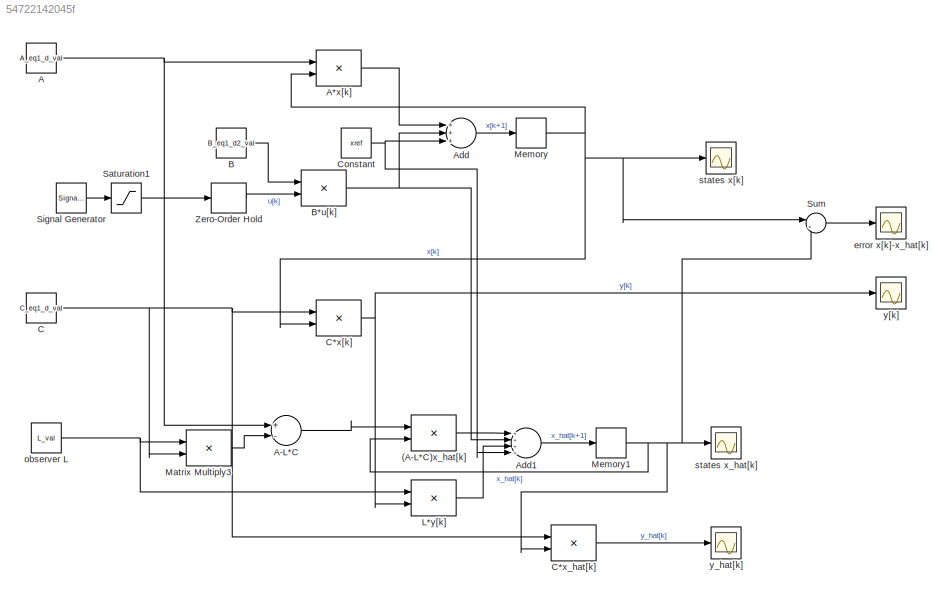
MODEL slx_54722142045f
KIND model
CONFIG AbsTol = auto
CONFIG EnableMultiTasking = off
CONFIG FixedStep = auto
CONFIG InitFcn = lin_discr_model
CONFIG MaxStep = auto
CONFIG MinStep = auto
CONFIG RelTol = 1e-3
CONFIG SampleTimeConstraint = Unconstrained
CONFIG Solver = VariableStepAuto
CONFIG SolverName = VariableStepAuto
CONFIG StartTime = 0.0
CONFIG StopTime = 30
BLOCK [Product] (A-L*C)x_hat[k]
  InputSameDT = off
  Multiplication = Matrix(*)
  OutDataTypeStr = Inherit: Inherit via internal rule
  Ports = [2, 1]
  RndMeth = Floor
  SaturateOnIntegerOverflow = off
BLOCK [Constant] A
  SampleTime = Ts
  Value = A_eq1_d_val
BLOCK [Product] A*x[k]
  InputSameDT = off
  Multiplication = Matrix(*)
  OutDataTypeStr = Inherit: Inherit via internal rule
  Ports = [2, 1]
  RndMeth = Floor
  SaturateOnIntegerOverflow = off
BLOCK [Sum] A-L*C
  InputSameDT = off
  Inputs = +-
  OutDataTypeStr = Inherit: Inherit via internal rule
  Ports = [2, 1]
  SaturateOnIntegerOverflow = off
BLOCK [Sum] Add
  InputSameDT = off
  Inputs = +++
  OutDataTypeStr = Inherit: Inherit via internal rule
  Ports = [3, 1]
  SaturateOnIntegerOverflow = off
BLOCK [Sum] Add1
  InputSameDT = off
  Inputs = ++++
  OutDataTypeStr = Inherit: Inherit via internal rule
  Ports = [4, 1]
  SaturateOnIntegerOverflow = off
BLOCK [Constant] B
  SampleTime = Ts
  Value = B_eq1_d2_val
BLOCK [Product] B*u[k]
  InputSameDT = off
  Multiplication = Matrix(*)
  OutDataTypeStr = Inherit: Inherit via internal rule
  Ports = [2, 1]
  RndMeth = Floor
  SaturateOnIntegerOverflow = off
BLOCK [Constant] C
  SampleTime = Ts
  Value = C_eq1_d_val
BLOCK [Product] C*x[k]
  InputSameDT = off
  Multiplication = Matrix(*)
  OutDataTypeStr = Inherit: Inherit via internal rule
  Ports = [2, 1]
  RndMeth = Floor
  SaturateOnIntegerOverflow = off
BLOCK [Product] C*x_hat[k]
  InputSameDT = off
  Multiplication = Matrix(*)
  OutDataTypeStr = Inherit: Inherit via internal rule
  Ports = [2, 1]
  RndMeth = Floor
  SaturateOnIntegerOverflow = off
BLOCK [Constant] Constant
  SampleTime = Ts
  Value = xref
BLOCK [Product] L*y[k]
  InputSameDT = off
  Multiplication = Matrix(*)
  OutDataTypeStr = Inherit: Inherit via internal rule
  Ports = [2, 1]
  RndMeth = Floor
  SaturateOnIntegerOverflow = off
BLOCK [Product] Matrix Multiply3
  InputSameDT = off
  Multiplication = Matrix(*)
  OutDataTypeStr = Inherit: Inherit via internal rule
  Ports = [2, 1]
  RndMeth = Floor
  SaturateOnIntegerOverflow = off
BLOCK [Memory] Memory
  InitialCondition = [pi;0;0;0]
BLOCK [Memory] Memory1
  InitialCondition = [pi;0;0;0]
BLOCK [Saturate] Saturation1
  InputPortMap = u0
  LowerLimit = -1
  Ports = [1, 1]
  UpperLimit = 1
BLOCK [SignalGenerator] Signal Generator
  Amplitude = -0.3
  Ports = [0, 1]
  WaveForm = square
BLOCK [Sum] Sum
  IconShape = round
  InputSameDT = off
  Inputs = |+-
  OutDataTypeStr = Inherit: Inherit via internal rule
  Ports = [2, 1]
  SaturateOnIntegerOverflow = off
BLOCK [ZeroOrderHold] Zero-Order Hold
  SampleTime = Ts
BLOCK [Scope] error x[k]-x_hat[k]
  Floating = off
  NumInputPorts = 1
  Ports = [1]
  ScopeSpecificationString = Simulink.scopes.TimeScopeBlockCfg('CurrentConfiguration', extmgr.ConfigurationSet(extmgr.Configuration('Core','General UI',true),extmgr.Configuration('Core','Source UI',true),extmgr.Configuration('Sources','WiredSimulink',true,'DataLoggingVariableName','ScopeData1'),extmgr.Configuration('Visuals','Time Domain',true,'SerializedDisplays',{struct('MinYLimReal','-0.05924','MaxYLimReal','-0.00088','YLa...<+1467ch>
BLOCK [Constant] observer L
  SampleTime = Ts
  Value = L_val
BLOCK [Scope] states x[k]
  Floating = off
  NumInputPorts = 1
  Ports = [1]
  ScopeSpecificationString = Simulink.scopes.TimeScopeBlockCfg('CurrentConfiguration', extmgr.ConfigurationSet(extmgr.Configuration('Core','General UI',true),extmgr.Configuration('Core','Source UI',true),extmgr.Configuration('Sources','WiredSimulink',true,'DataLoggingVariableName','ScopeData2'),extmgr.Configuration('Visuals','Time Domain',true,'SerializedDisplays',{struct('MinYLimReal','-4.99135','MaxYLimReal','5.38955','YLab...<+1423ch>
BLOCK [Scope] states x_hat[k]
  Floating = off
  NumInputPorts = 1
  Ports = [1]
  ScopeSpecificationString = Simulink.scopes.TimeScopeBlockCfg('CurrentConfiguration', extmgr.ConfigurationSet(extmgr.Configuration('Core','General UI',true),extmgr.Configuration('Core','Source UI',true),extmgr.Configuration('Sources','WiredSimulink',true,'DataLoggingVariableName','ScopeData3'),extmgr.Configuration('Visuals','Time Domain',true,'SerializedDisplays',{struct('MinYLimReal','-19.84868','MaxYLimReal','139.1055','YL...<+1447ch>
BLOCK [Scope] y[k]
  Floating = off
  NumInputPorts = 1
  Ports = [1]
  ScopeSpecificationString = Simulink.scopes.TimeScopeBlockCfg('CurrentConfiguration', extmgr.ConfigurationSet(extmgr.Configuration('Core','General UI',true),extmgr.Configuration('Core','Source UI',true),extmgr.Configuration('Sources','WiredSimulink',true,'DataLoggingVariableName','ScopeData4'),extmgr.Configuration('Visuals','Time Domain',true,'SerializedDisplays',{struct('MinYLimReal','-1.44646','MaxYLimReal','4.68659','YLab...<+1407ch>
BLOCK [Scope] y_hat[k]
  Floating = off
  NumInputPorts = 1
  Ports = [1]
  ScopeSpecificationString = Simulink.scopes.TimeScopeBlockCfg('CurrentConfiguration', extmgr.ConfigurationSet(extmgr.Configuration('Core','General UI',true),extmgr.Configuration('Core','Source UI',true),extmgr.Configuration('Sources','WiredSimulink',true,'DataLoggingVariableName','ScopeData1'),extmgr.Configuration('Visuals','Time Domain',true,'SerializedDisplays',{struct('MinYLimReal','-1.44646','MaxYLimReal','4.68659','YLab...<+1382ch>
LINE (A-L*C)x_hat[k]:1 -> Add1:1
LINE A*x[k]:1 -> Add:1
LINE A-L*C:1 -> (A-L*C)x_hat[k]:1
NET A:1 -> A*x[k]:1, A-L*C:1
LINE Add1:1 -> Memory1:1
LINE Add:1 -> Memory:1
NET B*u[k]:1 -> Add1:2, Add:2
LINE B:1 -> B*u[k]:1
NET C*x[k]:1 -> L*y[k]:2, y[k]:1
LINE C*x_hat[k]:1 -> y_hat[k]:1
NET C:1 -> C*x[k]:1, C*x_hat[k]:1, Matrix Multiply3:2
NET Constant:1 -> Add1:4, Add:3
LINE L*y[k]:1 -> Add1:3
LINE Matrix Multiply3:1 -> A-L*C:2
NET Memory1:1 -> (A-L*C)x_hat[k]:2, C*x_hat[k]:2, Sum:2, states x_hat[k]:1
NET Memory:1 -> A*x[k]:2, C*x[k]:2, Sum:1, states x[k]:1
LINE Saturation1:1 -> Zero-Order Hold:1
LINE Signal Generator:1 -> Saturation1:1
LINE Sum:1 -> error x[k]-x_hat[k]:1
LINE Zero-Order Hold:1 -> B*u[k]:2
NET observer L:1 -> L*y[k]:1, Matrix Multiply3:1
note: NET lines group one-source signal fan-out (src -> all destinations, sorted); 1:1 wires keep LINE
